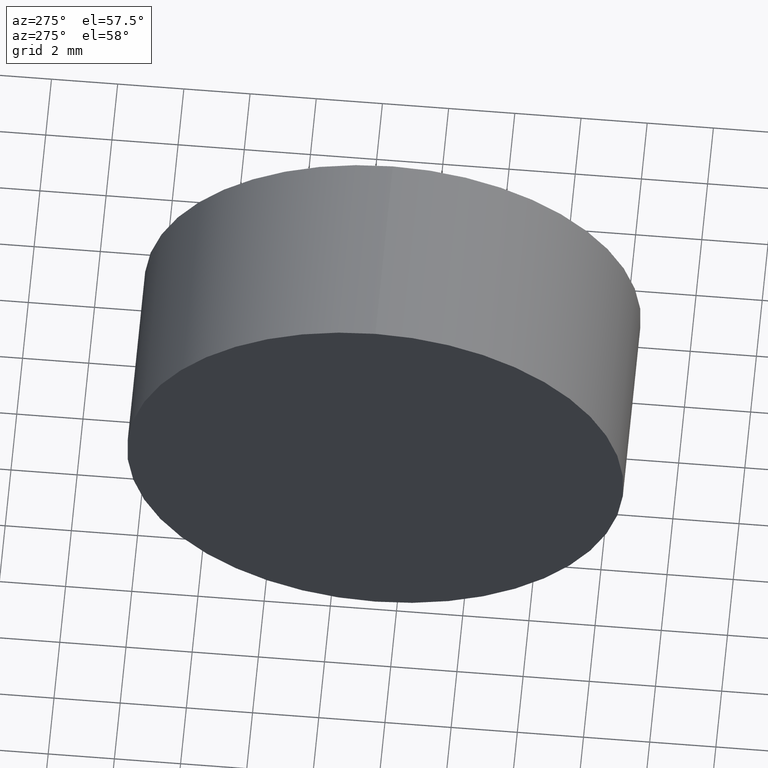
[diagram: clean part render]
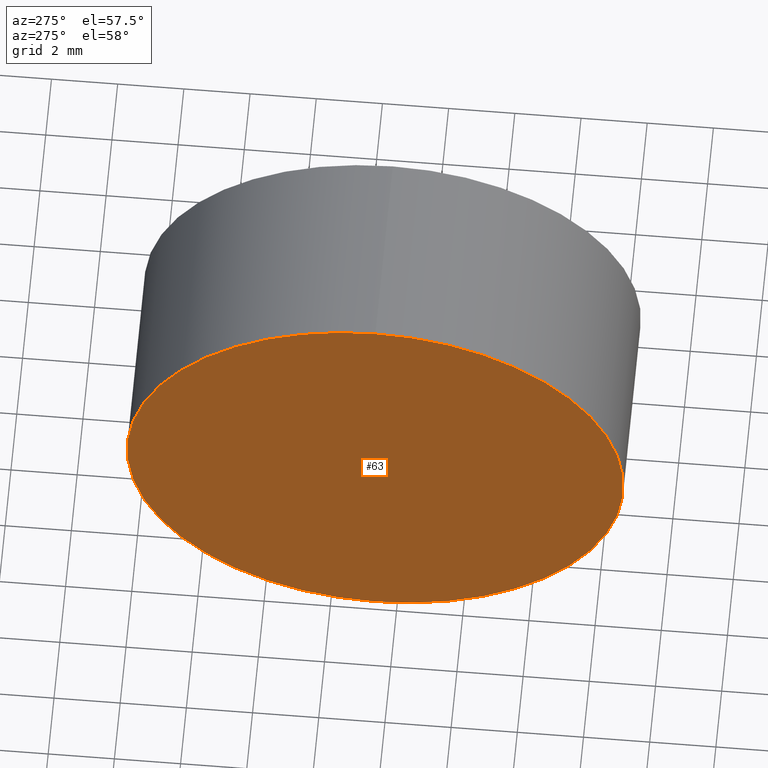
[diagram: same view with one face highlighted and labeled with its STEP entity id]
A machine part, auxiliary view. The second image highlights one B-rep face of the part: STEP entity #63.
In plain terms, the highlighted planar face has unit normal (1, 0, 0).
Its self-contained STEP definition (entity closure, byte-faithful):
#7 = DIRECTION ( 'NONE',  ( -1.000000000000000000, -0.0000000000000000000, -0.0000000000000000000 ) ) ;
#11 = VERTEX_POINT ( 'NONE', #110 ) ;
#13 = AXIS2_PLACEMENT_3D ( 'NONE', #91, #41, #51 ) ;
#20 = DIRECTION ( 'NONE',  ( 1.000000000000000000, 0.0000000000000000000, 0.0000000000000000000 ) ) ;
#22 = AXIS2_PLACEMENT_3D ( 'NONE', #130, #20, #100 ) ;
#27 = EDGE_CURVE ( 'NONE', #11, #138, #68, .T. ) ;
#28 = PLANE ( 'NONE',  #22 ) ;
#41 = DIRECTION ( 'NONE',  ( -1.000000000000000000, -0.0000000000000000000, -0.0000000000000000000 ) ) ;
#45 = ORIENTED_EDGE ( 'NONE', *, *, #62, .T. ) ;
#47 = FACE_OUTER_BOUND ( 'NONE', #104, .T. ) ;
#48 = ORIENTED_EDGE ( 'NONE', *, *, #27, .T. ) ;
#51 = DIRECTION ( 'NONE',  ( 0.0000000000000000000, 0.0000000000000000000, 1.000000000000000000 ) ) ;
#62 = EDGE_CURVE ( 'NONE', #138, #11, #131, .T. ) ;
#63 = ADVANCED_FACE ( 'NONE', ( #47 ), #28, .F. ) ;
#68 = CIRCLE ( 'NONE', #136, 7.500000000000000000 ) ;
#73 = DIRECTION ( 'NONE',  ( 0.0000000000000000000, 0.0000000000000000000, 1.000000000000000000 ) ) ;
#91 = CARTESIAN_POINT ( 'NONE',  ( 130.0639985298940900, 38.64658967450770900, 0.0000000000000000000 ) ) ;
#95 = CARTESIAN_POINT ( 'NONE',  ( 130.0639985298940900, 38.64658967450770900, -7.500000000000000000 ) ) ;
#100 = DIRECTION ( 'NONE',  ( 0.0000000000000000000, 0.0000000000000000000, -1.000000000000000000 ) ) ;
#104 = EDGE_LOOP ( 'NONE', ( #48, #45 ) ) ;
#110 = CARTESIAN_POINT ( 'NONE',  ( 130.0639985298940900, 38.64658967450770900, 7.500000000000000000 ) ) ;
#128 = CARTESIAN_POINT ( 'NONE',  ( 130.0639985298940900, 38.64658967450770900, 0.0000000000000000000 ) ) ;
#130 = CARTESIAN_POINT ( 'NONE',  ( 130.0639985298940900, 38.64658967450770900, 0.0000000000000000000 ) ) ;
#131 = CIRCLE ( 'NONE', #13, 7.500000000000000000 ) ;
#136 = AXIS2_PLACEMENT_3D ( 'NONE', #128, #7, #73 ) ;
#138 = VERTEX_POINT ( 'NONE', #95 ) ;